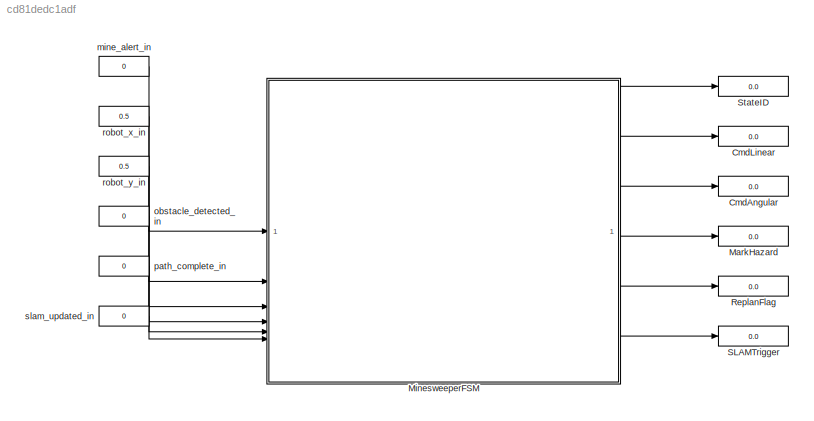
MODEL slx_cd81dedc1adf
KIND model
CONFIG AbsTol = auto
CONFIG EnableMultiTasking = off
CONFIG FixedStep = 0.1
CONFIG MaxStep = auto
CONFIG MinStep = auto
CONFIG RelTol = 1e-3
CONFIG SampleTimeConstraint = Unconstrained
CONFIG SolverName = FixedStepDiscrete
CONFIG StartTime = 0.0
CONFIG StopTime = 120
BLOCK [Display] CmdAngular
  Decimation = 1
BLOCK [Display] CmdLinear
  Decimation = 1
BLOCK [Display] MarkHazard
  Decimation = 1
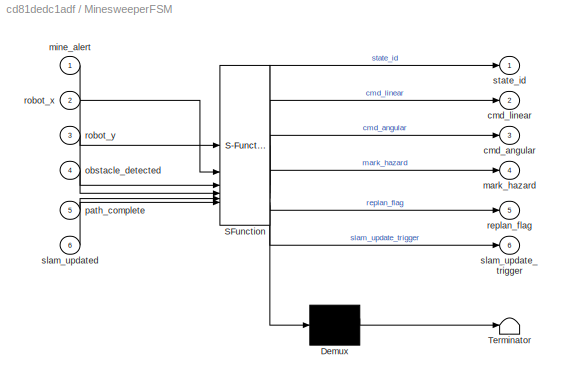
BLOCK [SubSystem] MinesweeperFSM
  ErrorFcn = Stateflow.Translate.translate
  PermitHierarchicalResolution = ExplicitOnly
  SFBlockType = Chart
  TreatAsAtomicUnit = on
BLOCK [Demux] MinesweeperFSM/ Demux 
  Outputs = 1
BLOCK [S-Function] MinesweeperFSM/ SFunction 
  EnableBusSupport = off
  FunctionName = sf_sfun
  PortCounts = [6 7]
  SFcnIsStateOwnerBlock = off
  SFunctionDeploymentMode = off
  Tag = Stateflow S-Function 3
BLOCK [Terminator] MinesweeperFSM/ Terminator 
BLOCK [Outport] MinesweeperFSM/cmd_angular
  Port = 3
BLOCK [Outport] MinesweeperFSM/cmd_linear
  Port = 2
BLOCK [Outport] MinesweeperFSM/mark_hazard
  Port = 4
BLOCK [Inport] MinesweeperFSM/mine_alert
BLOCK [Inport] MinesweeperFSM/obstacle_detected
  Port = 4
BLOCK [Inport] MinesweeperFSM/path_complete
  Port = 5
BLOCK [Outport] MinesweeperFSM/replan_flag
  Port = 5
BLOCK [Inport] MinesweeperFSM/robot_x
  Port = 2
BLOCK [Inport] MinesweeperFSM/robot_y
  Port = 3
BLOCK [Outport] MinesweeperFSM/slam_update_trigger
  Port = 6
BLOCK [Inport] MinesweeperFSM/slam_updated
  Port = 6
BLOCK [Outport] MinesweeperFSM/state_id
BLOCK [Display] ReplanFlag
  Decimation = 1
BLOCK [Display] SLAMTrigger
  Decimation = 1
BLOCK [Display] StateID
  Decimation = 1
BLOCK [Constant] mine_alert_in
  Value = 0
BLOCK [Constant] obstacle_detected_in
  Value = 0
BLOCK [Constant] path_complete_in
  Value = 0
BLOCK [Constant] robot_x_in
  Value = 0.5
BLOCK [Constant] robot_y_in
  Value = 0.5
BLOCK [Constant] slam_updated_in
  Value = 0
LINE MinesweeperFSM:1 -> StateID:1
LINE MinesweeperFSM:2 -> CmdLinear:1
LINE MinesweeperFSM:3 -> CmdAngular:1
LINE MinesweeperFSM:4 -> MarkHazard:1
LINE MinesweeperFSM:5 -> ReplanFlag:1
LINE MinesweeperFSM:6 -> SLAMTrigger:1
LINE mine_alert_in:1 -> MinesweeperFSM:1
LINE obstacle_detected_in:1 -> MinesweeperFSM:4
LINE path_complete_in:1 -> MinesweeperFSM:5
LINE robot_x_in:1 -> MinesweeperFSM:2
LINE robot_y_in:1 -> MinesweeperFSM:3
LINE slam_updated_in:1 -> MinesweeperFSM:6
CHART MinesweeperFSM states=6 transitions=8
  STATE_LABEL 'Explore\nentry: state_id=1; cmd_linear=0.5; cmd_angular=0;\n mark_hazard=0; replan_flag=0;\nduring: distance=robot_x+robot_y;'
  STATE_LABEL 'DetectObstacle\nentry: state_id=2; cmd_linear=0;\n obstacle_x=robot_x; obstacle_y=robot_y;\n known_obstacles=known_obstacles+1;'
  STATE_LABEL 'ReplanPath\nentry: state_id=4; replan_flag=1; cmd_linear=0;\nduring: distance=abs(robot_x-obstacle_x)+abs(robot_y-obstacle_y);'
  STATE_LABEL 'UpdateSLAM\nentry: state_id=3; slam_update_trigger=1;\nduring: if slam_updated==1, slam_update_trigger=0; end'
  STATE_LABEL 'DetectMine\nentry: state_id=5; cmd_linear=0; mark_hazard=1;\n mine_x=robot_x; mine_y=robot_y;\n known_mines=known_mines+1;'
  STATE_LABEL 'MissionComplete\nentry: state_id=6; cmd_linear=0; cmd_angular=0;\n replan_flag=0; mark_hazard=0;'
CHART  states=0 transitions=0
